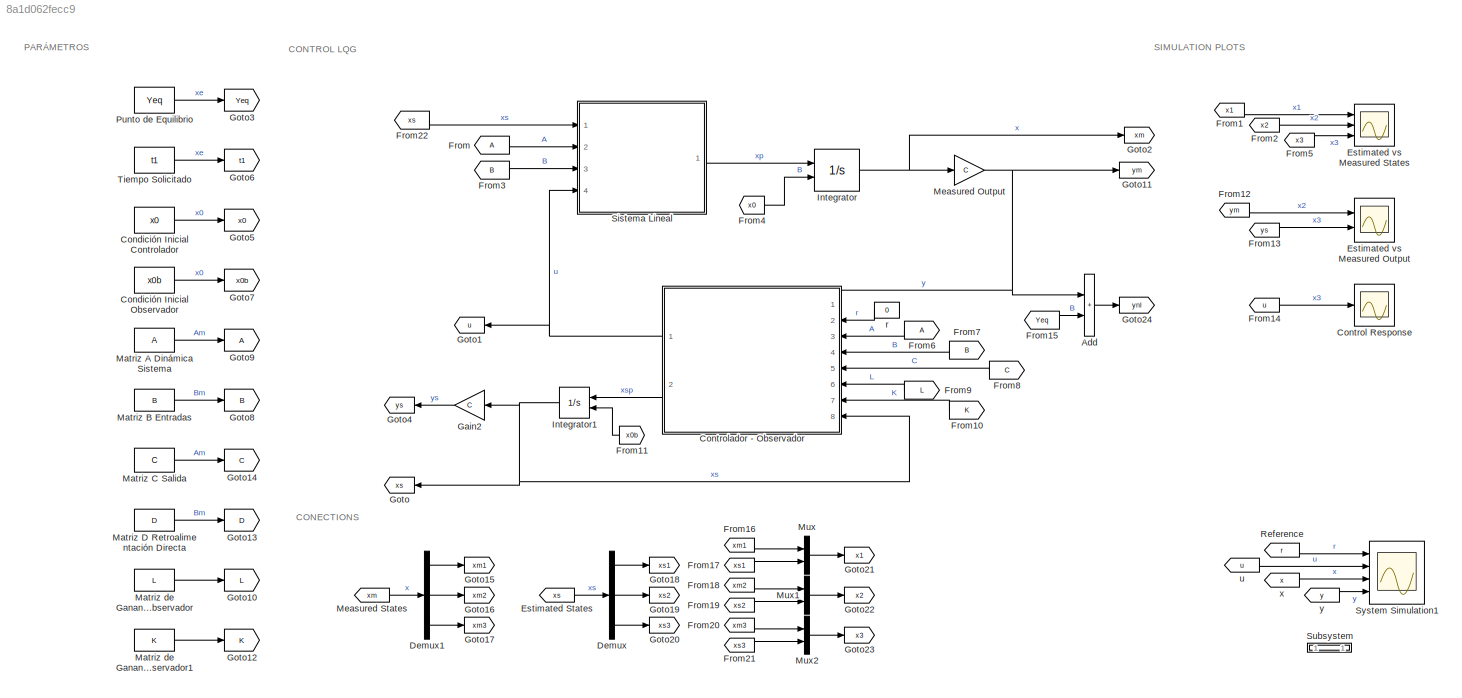
MODEL slx_8a1d062fecc9
KIND model
CONFIG AbsTol = auto
CONFIG EnableMultiTasking = off
CONFIG FixedStep = auto
CONFIG MaxStep = auto
CONFIG MinStep = auto
CONFIG RelTol = 1e-3
CONFIG SampleTimeConstraint = Unconstrained
CONFIG SolverName = VariableStepAuto
CONFIG StartTime = 0.0
CONFIG StopTime = 15
BLOCK [Constant]  Matriz B Entradas
  Value = B
  VectorParams1D = off
BLOCK [Constant]  Matriz de Ganancias Observador
  Value = L
  VectorParams1D = off
BLOCK [Constant]  Matriz de Ganancias Observador1
  Value = K
  VectorParams1D = off
BLOCK [Sum] Add
  IconShape = rectangular
  Ports = [2, 1]
BLOCK [Constant] Condición Inicial Controlador
  Value = x0
  VectorParams1D = off
BLOCK [Constant] Condición Inicial Observador
  Value = x0b
  VectorParams1D = off
BLOCK [Scope] Control Response
  Floating = off
  NumInputPorts = 1
  Ports = [1]
  ScopeSpecificationString = Simulink.scopes.TimeScopeBlockCfg('CurrentConfiguration', extmgr.ConfigurationSet(extmgr.Configuration('Core','General UI',true),extmgr.Configuration('Core','Source UI',true),extmgr.Configuration('Sources','WiredSimulink',true,'DataLoggingVariableName','ScopeData4'),extmgr.Configuration('Visuals','Time Domain',true,'SerializedDisplays',{struct('MinYLimReal','-0.88103','MaxYLimReal','0.09789','YLab...<+1985ch>
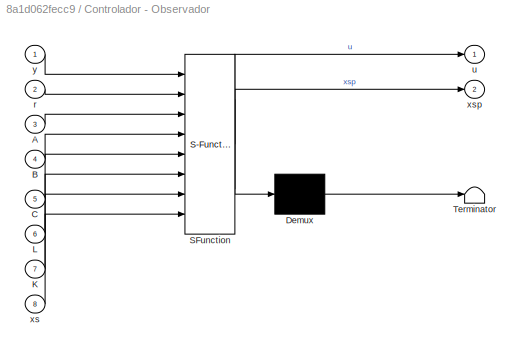
BLOCK [SubSystem] Controlador - Observador
  ErrorFcn = Stateflow.Translate.translate
  PermitHierarchicalResolution = ExplicitOnly
  Ports = [8, 2]
  RequestExecContextInheritance = off
  SFBlockType = MATLAB Function
  TreatAsAtomicUnit = on
BLOCK [Demux] Controlador - Observador/ Demux 
  Outputs = 1
  Ports = [1, 1]
BLOCK [S-Function] Controlador - Observador/ SFunction 
  EnableBusSupport = on
  FunctionName = sf_sfun
  PortCounts = [8 3]
  Ports = [8, 3]
  SFcnIsStateOwnerBlock = off
  SFunctionDeploymentMode = off
  Tag = Stateflow S-Function 2
BLOCK [Terminator] Controlador - Observador/ Terminator 
BLOCK [Inport] Controlador - Observador/A
  Port = 3
BLOCK [Inport] Controlador - Observador/B
  Port = 4
BLOCK [Inport] Controlador - Observador/C
  Port = 5
BLOCK [Inport] Controlador - Observador/K
  Port = 7
BLOCK [Inport] Controlador - Observador/L
  Port = 6
BLOCK [Inport] Controlador - Observador/r
  Port = 2
BLOCK [Outport] Controlador - Observador/u
BLOCK [Inport] Controlador - Observador/xs
  Port = 8
BLOCK [Outport] Controlador - Observador/xsp
  Port = 2
BLOCK [Inport] Controlador - Observador/y
BLOCK [Demux] Demux
  Outputs = 3
  Ports = [1, 3]
BLOCK [Demux] Demux1
  Outputs = 3
  Ports = [1, 3]
BLOCK [From] Estimated States
  GotoTag = xs
BLOCK [Scope] Estimated vs Measured Output
  Floating = off
  NumInputPorts = 2
  Ports = [2]
  ScopeSpecificationString = Simulink.scopes.TimeScopeBlockCfg('CurrentConfiguration', extmgr.ConfigurationSet(extmgr.Configuration('Core','General UI',true),extmgr.Configuration('Core','Source UI',true),extmgr.Configuration('Sources','WiredSimulink',true,'DataLoggingVariableName','ScopeData3'),extmgr.Configuration('Visuals','Time Domain',true,'SerializedDisplays',{struct('MinYLimReal','-52.875','MaxYLimReal','5.875','YLabelR...<+1602ch>
BLOCK [Scope] Estimated vs Measured States
  Floating = off
  NumInputPorts = 3
  Ports = [3]
  ScopeSpecificationString = Simulink.scopes.TimeScopeBlockCfg('CurrentConfiguration', extmgr.ConfigurationSet(extmgr.Configuration('Core','General UI',true),extmgr.Configuration('Core','Source UI',true),extmgr.Configuration('Sources','WiredSimulink',true,'DataLoggingVariableName','ScopeData2'),extmgr.Configuration('Visuals','Time Domain',true,'SerializedDisplays',{struct('MinYLimReal','-2826.63737','MaxYLimReal','1577.64144'...<+3147ch>
BLOCK [From] From
BLOCK [From] From1
  GotoTag = x1
BLOCK [From] From10
  GotoTag = K
  NameLocation = top
BLOCK [From] From11
  GotoTag = x0b
  NameLocation = top
BLOCK [From] From12
  GotoTag = ym
BLOCK [From] From13
  GotoTag = ys
BLOCK [From] From14
  GotoTag = u
BLOCK [From] From15
  GotoTag = Yeq
BLOCK [From] From16
  GotoTag = xm1
BLOCK [From] From17
  GotoTag = xs1
BLOCK [From] From18
  GotoTag = xm2
BLOCK [From] From19
  GotoTag = xs2
BLOCK [From] From2
  GotoTag = x2
BLOCK [From] From20
  GotoTag = xm3
BLOCK [From] From21
  GotoTag = xs3
BLOCK [From] From22
  GotoTag = xs
BLOCK [From] From3
  GotoTag = B
BLOCK [From] From4
  GotoTag = x0
BLOCK [From] From5
  GotoTag = x3
BLOCK [From] From6
  NameLocation = top
BLOCK [From] From7
  GotoTag = B
  NameLocation = top
BLOCK [From] From8
  GotoTag = C
  NameLocation = top
BLOCK [From] From9
  GotoTag = L
  NameLocation = top
BLOCK [Gain] Gain2
  Gain = C
  Multiplication = Matrix(K*u)
  NameLocation = top
BLOCK [Goto] Goto
  GotoTag = xs
  NameLocation = top
BLOCK [Goto] Goto1
  GotoTag = u
  NameLocation = top
BLOCK [Goto] Goto10
  GotoTag = L
BLOCK [Goto] Goto11
  GotoTag = ym
BLOCK [Goto] Goto12
  GotoTag = K
BLOCK [Goto] Goto13
  GotoTag = D
BLOCK [Goto] Goto14
  GotoTag = C
BLOCK [Goto] Goto15
  GotoTag = xm1
BLOCK [Goto] Goto16
  GotoTag = xm2
BLOCK [Goto] Goto17
  GotoTag = xm3
BLOCK [Goto] Goto18
  GotoTag = xs1
BLOCK [Goto] Goto19
  GotoTag = xs2
BLOCK [Goto] Goto2
  GotoTag = xm
BLOCK [Goto] Goto20
  GotoTag = xs3
BLOCK [Goto] Goto21
  GotoTag = x1
BLOCK [Goto] Goto22
  GotoTag = x2
BLOCK [Goto] Goto23
  GotoTag = x3
BLOCK [Goto] Goto24
  GotoTag = ynl
BLOCK [Goto] Goto3
  GotoTag = Yeq
BLOCK [Goto] Goto4
  GotoTag = ys
  NameLocation = top
BLOCK [Goto] Goto5
  GotoTag = x0
BLOCK [Goto] Goto6
  GotoTag = t1
BLOCK [Goto] Goto7
  GotoTag = x0b
BLOCK [Goto] Goto8
  GotoTag = B
BLOCK [Goto] Goto9
BLOCK [Integrator] Integrator
  InitialCondition = x0
  InitialConditionSource = external
  Ports = [2, 1]
BLOCK [Integrator] Integrator1
  InitialCondition = x0b
  InitialConditionSource = external
  Ports = [2, 1]
BLOCK [Constant] Matriz A Dinámica Sistema
  Value = A
  VectorParams1D = off
BLOCK [Constant] Matriz C Salida
  Value = C
  VectorParams1D = off
BLOCK [Constant] Matriz D Retroalimentación Directa
  Value = D
  VectorParams1D = off
BLOCK [Gain] Measured Output
  Gain = C
  Multiplication = Matrix(K*u)
BLOCK [From] Measured States
  GotoTag = xm
BLOCK [Mux] Mux
  DisplayOption = bar
  Inputs = 2
  Ports = [2, 1]
BLOCK [Mux] Mux1
  DisplayOption = bar
  Inputs = 2
  Ports = [2, 1]
BLOCK [Mux] Mux2
  DisplayOption = bar
  Inputs = 2
  Ports = [2, 1]
BLOCK [Constant] Punto de Equilibrio
  Value = Yeq
  VectorParams1D = off
BLOCK [From] Reference
  GotoTag = r
  NameLocation = top
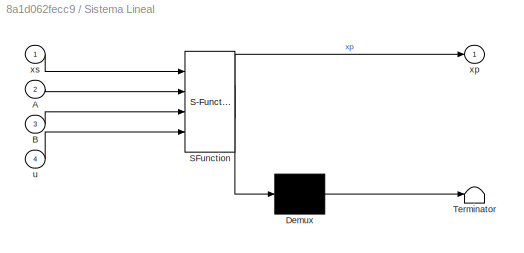
BLOCK [SubSystem] Sistema Lineal
  ErrorFcn = Stateflow.Translate.translate
  PermitHierarchicalResolution = ExplicitOnly
  Ports = [4, 1]
  RequestExecContextInheritance = off
  SFBlockType = MATLAB Function
  TreatAsAtomicUnit = on
BLOCK [Demux] Sistema Lineal/ Demux 
  Outputs = 1
  Ports = [1, 1]
BLOCK [S-Function] Sistema Lineal/ SFunction 
  EnableBusSupport = on
  FunctionName = sf_sfun
  PortCounts = [4 2]
  Ports = [4, 2]
  SFcnIsStateOwnerBlock = off
  SFunctionDeploymentMode = off
  Tag = Stateflow S-Function 1
BLOCK [Terminator] Sistema Lineal/ Terminator 
BLOCK [Inport] Sistema Lineal/A
  Port = 2
BLOCK [Inport] Sistema Lineal/B
  Port = 3
BLOCK [Inport] Sistema Lineal/u
  Port = 4
BLOCK [Outport] Sistema Lineal/xp
BLOCK [Inport] Sistema Lineal/xs
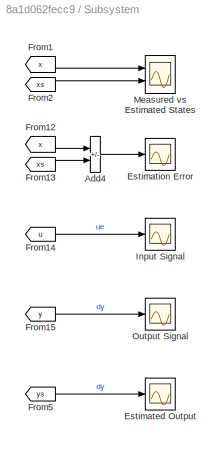
BLOCK [SubSystem] Subsystem
  Ports = []
  RequestExecContextInheritance = off
BLOCK [Sum] Subsystem/Add4
  Commented = on
  IconShape = rectangular
  Inputs = +-
  Ports = [2, 1]
BLOCK [Scope] Subsystem/Estimated Output
  Commented = on
  Floating = off
  NumInputPorts = 1
  Ports = [1]
  ScopeSpecificationString = Simulink.scopes.TimeScopeBlockCfg('CurrentConfiguration', extmgr.ConfigurationSet(extmgr.Configuration('Core','General UI',true,'FigureColor',[1 1 1]),extmgr.Configuration('Core','Source UI',true),extmgr.Configuration('Sources','WiredSimulink',true,'DataLoggingVariableName','ScopeData1'),extmgr.Configuration('Visuals','Time Domain',true,'SerializedDisplays',{struct('MinYLimReal','2.10417','MaxYLim...<+1602ch>
BLOCK [Scope] Subsystem/Estimation Error
  Commented = on
  Floating = off
  NumInputPorts = 1
  Ports = [1]
  ScopeSpecificationString = Simulink.scopes.TimeScopeBlockCfg('CurrentConfiguration', extmgr.ConfigurationSet(extmgr.Configuration('Core','General UI',true,'FigureColor',[1 1 1]),extmgr.Configuration('Core','Source UI',true),extmgr.Configuration('Sources','WiredSimulink',true,'DataLoggingVariableName','ScopeData1'),extmgr.Configuration('Visuals','Time Domain',true,'SerializedDisplays',{struct('MinYLimReal','-7.9489','MaxYLim...<+1747ch>
BLOCK [From] Subsystem/From1
  Commented = on
  GotoTag = x
BLOCK [From] Subsystem/From12
  Commented = on
  GotoTag = x
BLOCK [From] Subsystem/From13
  Commented = on
  GotoTag = xs
BLOCK [From] Subsystem/From14
  Commented = on
  GotoTag = u
BLOCK [From] Subsystem/From15
  Commented = on
  GotoTag = y
BLOCK [From] Subsystem/From2
  Commented = on
  GotoTag = xs
BLOCK [From] Subsystem/From5
  Commented = on
  GotoTag = ys
BLOCK [Scope] Subsystem/Input Signal
  Commented = on
  Floating = off
  NumInputPorts = 1
  Ports = [1]
  ScopeSpecificationString = Simulink.scopes.TimeScopeBlockCfg('CurrentConfiguration', extmgr.ConfigurationSet(extmgr.Configuration('Core','General UI',true),extmgr.Configuration('Core','Source UI',true),extmgr.Configuration('Sources','WiredSimulink',true,'DataLoggingVariableName','ScopeData2'),extmgr.Configuration('Visuals','Time Domain',true),extmgr.Configuration('Tools','Plot Navigation',true),extmgr.Configuration('Tools',...<+40ch>
BLOCK [Scope] Subsystem/Measured vs Estimated States
  Commented = on
  Floating = off
  NumInputPorts = 2
  Ports = [2]
  ScopeSpecificationString = Simulink.scopes.TimeScopeBlockCfg('CurrentConfiguration', extmgr.ConfigurationSet(extmgr.Configuration('Core','General UI',true,'FigureColor',[1 1 1]),extmgr.Configuration('Core','Source UI',true),extmgr.Configuration('Sources','WiredSimulink',true),extmgr.Configuration('Visuals','Time Domain',true,'SerializedDisplays',{struct('MinYLimReal','-0.74672','MaxYLimReal','0.25595','YLabelReal','c,tau','...<+2049ch>
BLOCK [Scope] Subsystem/Output Signal
  Commented = on
  Floating = off
  NumInputPorts = 1
  Ports = [1]
  ScopeSpecificationString = Simulink.scopes.TimeScopeBlockCfg('CurrentConfiguration', extmgr.ConfigurationSet(extmgr.Configuration('Core','General UI',true,'FigureColor',[1 1 1]),extmgr.Configuration('Core','Source UI',true),extmgr.Configuration('Sources','WiredSimulink',true,'DataLoggingVariableName','ScopeData3'),extmgr.Configuration('Visuals','Time Domain',true,'SerializedDisplays',{struct('MinYLimReal','2.10417','MaxYLim...<+1602ch>
BLOCK [Scope] System Simulation1
  Floating = off
  NumInputPorts = 4
  Ports = [4]
  ScopeSpecificationString = Simulink.scopes.TimeScopeBlockCfg('CurrentConfiguration', extmgr.ConfigurationSet(extmgr.Configuration('Core','General UI',true,'FigureColor',[0 0 0]),extmgr.Configuration('Core','Source UI',true),extmgr.Configuration('Sources','WiredSimulink',true,'DataLoggingVariableName','ScopeData2'),extmgr.Configuration('Visuals','Time Domain',true,'SerializedDisplays',{struct('MinYLimReal','-0.125','MaxYLimR...<+3929ch>
BLOCK [Constant] Tiempo Solicitado
  Value = t1
  VectorParams1D = off
BLOCK [Constant] r
  NameLocation = right
  Value = 0
  VectorParams1D = off
BLOCK [From] u
  GotoTag = u
BLOCK [From] x
  GotoTag = x
BLOCK [From] y
  GotoTag = y
ANNOTATION (root): CONECTIONS
ANNOTATION (root): CONTROL LQG
ANNOTATION (root): PARÁMETROS
ANNOTATION (root): SIMULATION PLOTS
LINE  Matriz B Entradas:1 -> Goto8:1
LINE  Matriz de Ganancias Observador1:1 -> Goto12:1
LINE  Matriz de Ganancias Observador:1 -> Goto10:1
LINE Add:1 -> Goto24:1
LINE Condición Inicial Controlador:1 -> Goto5:1
LINE Condición Inicial Observador:1 -> Goto7:1
NET Controlador - Observador:1 -> Goto1:1, Sistema Lineal:4
LINE Controlador - Observador:2 -> Integrator1:1
LINE Demux1:1 -> Goto15:1
LINE Demux1:2 -> Goto16:1
LINE Demux1:3 -> Goto17:1
LINE Demux:1 -> Goto18:1
LINE Demux:2 -> Goto19:1
LINE Demux:3 -> Goto20:1
LINE Estimated States:1 -> Demux:1
LINE From10:1 -> Controlador - Observador:7
LINE From11:1 -> Integrator1:2
LINE From12:1 -> Estimated vs Measured Output:1
LINE From13:1 -> Estimated vs Measured Output:2
LINE From14:1 -> Control Response:1
LINE From15:1 -> Add:2
LINE From16:1 -> Mux:1
LINE From17:1 -> Mux:2
LINE From18:1 -> Mux1:1
LINE From19:1 -> Mux1:2
LINE From1:1 -> Estimated vs Measured States:1
LINE From20:1 -> Mux2:1
LINE From21:1 -> Mux2:2
LINE From22:1 -> Sistema Lineal:1
LINE From2:1 -> Estimated vs Measured States:2
LINE From3:1 -> Sistema Lineal:3
LINE From4:1 -> Integrator:2
LINE From5:1 -> Estimated vs Measured States:3
LINE From6:1 -> Controlador - Observador:3
LINE From7:1 -> Controlador - Observador:4
LINE From8:1 -> Controlador - Observador:5
LINE From9:1 -> Controlador - Observador:6
LINE From:1 -> Sistema Lineal:2
LINE Gain2:1 -> Goto4:1
NET Integrator1:1 -> Controlador - Observador:8, Gain2:1, Goto:1
NET Integrator:1 -> Goto2:1, Measured Output:1
LINE Matriz A Dinámica Sistema:1 -> Goto9:1
LINE Matriz C Salida:1 -> Goto14:1
LINE Matriz D Retroalimentación Directa:1 -> Goto13:1
NET Measured Output:1 -> Add:1, Controlador - Observador:1, Goto11:1
LINE Measured States:1 -> Demux1:1
LINE Mux1:1 -> Goto22:1
LINE Mux2:1 -> Goto23:1
LINE Mux:1 -> Goto21:1
LINE Punto de Equilibrio:1 -> Goto3:1
LINE Reference:1 -> System Simulation1:1
LINE Sistema Lineal:1 -> Integrator:1
LINE Subsystem/Add4:1 -> Subsystem/Estimation Error:1
LINE Subsystem/From12:1 -> Subsystem/Add4:1
LINE Subsystem/From13:1 -> Subsystem/Add4:2
LINE Subsystem/From14:1 -> Subsystem/Input Signal:1
LINE Subsystem/From15:1 -> Subsystem/Output Signal:1
LINE Subsystem/From1:1 -> Subsystem/Measured vs Estimated States:1
LINE Subsystem/From2:1 -> Subsystem/Measured vs Estimated States:2
LINE Subsystem/From5:1 -> Subsystem/Estimated Output:1
LINE Tiempo Solicitado:1 -> Goto6:1
LINE r:1 -> Controlador - Observador:2
LINE u:1 -> System Simulation1:2
LINE x:1 -> System Simulation1:3
LINE y:1 -> System Simulation1:4
note: NET lines group one-source signal fan-out (src -> all destinations, sorted); 1:1 wires keep LINE
CHART Sistema Lineal states=1 transitions=1
  STATE_LABEL 'eML_blk_kernel()'
  STATE_LABEL 'SCRIPT:\nfunction xp = fcn(xs,A,B,u)\n\nxp = A*xs + B*u;\n'
CHART Controlador - Observador states=1 transitions=1
  STATE_LABEL 'eML_blk_kernel()'
  STATE_LABEL 'SCRIPT:\nfunction [u,xsp] = fcn(y,r,A,B,C,L,K,xs)\n\nxsp = (A - L*C - B*K)*(xs) + B*(r) + L*(y);\n\nu = -K*xs + r;\n\n'
CHART  states=0 transitions=0
CHART  states=0 transitions=0
